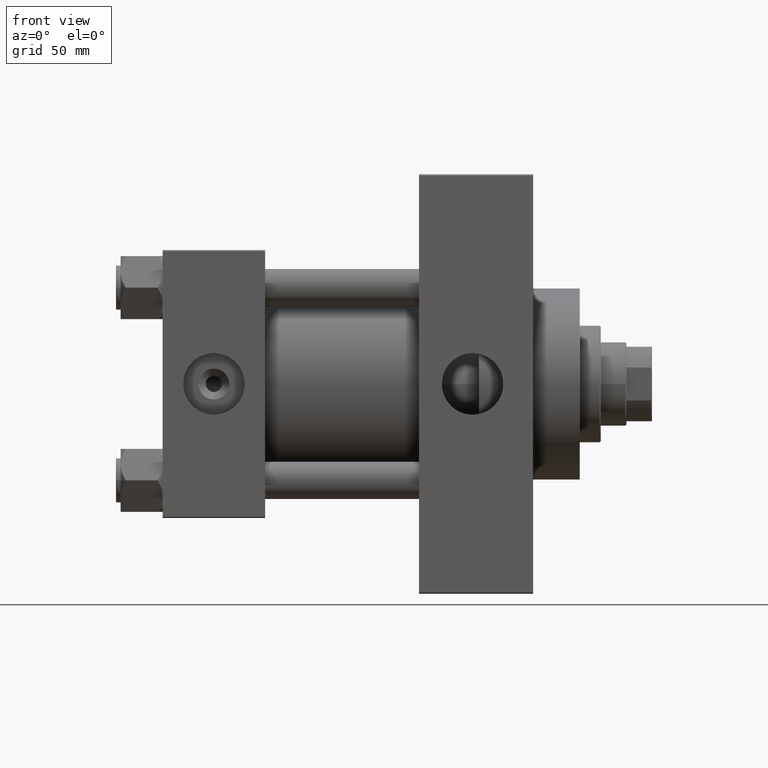
[diagram: clean part render]
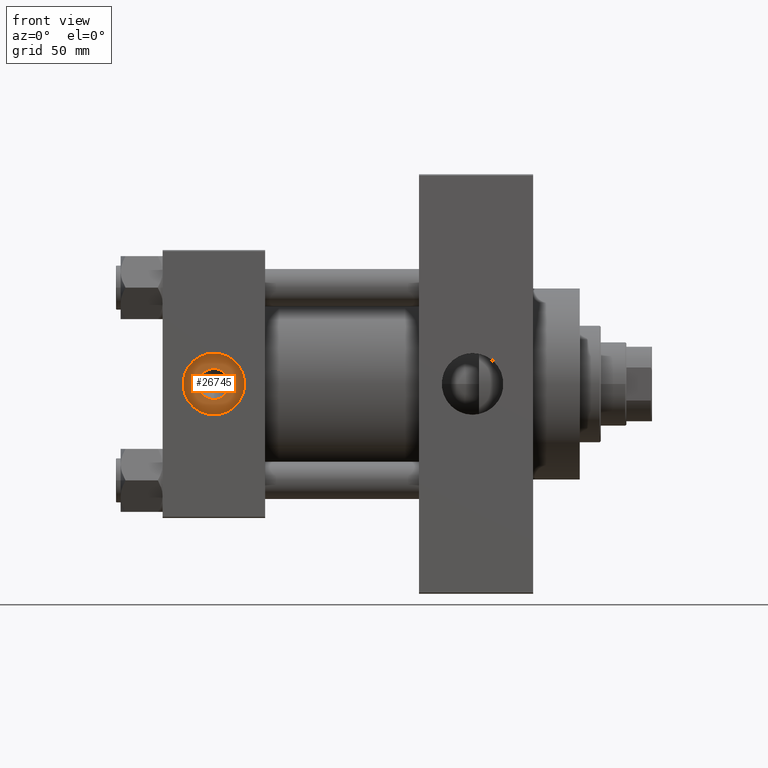
[diagram: same view with one face highlighted and labeled with its STEP entity id]
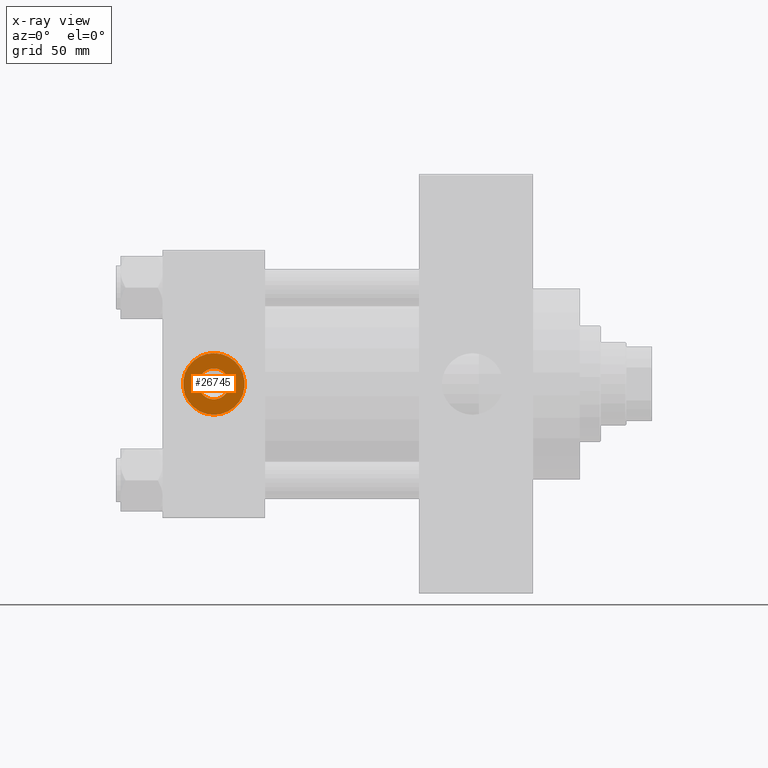
[diagram: x-ray of the same camera — body ghosted, the highlighted face saturated]
A machine part, front view. The second image highlights one B-rep face of the part: STEP entity #26745.
The next image is the same camera in x-ray: the body ghosted, the highlighted face saturated — about 0% of this face is hidden behind the body in this view.
In plain terms, the highlighted planar face has unit normal (0, -1, -0).
Its self-contained STEP definition (entity closure, byte-faithful):
#2114 = CARTESIAN_POINT ( 'NONE',  ( 22.00000000000000000, -46.60000000000000853, 9.454242944073594720E-16 ) ) ;
#2777 = EDGE_CURVE ( 'NONE', #10357, #21217, #20849, .T. ) ;
#2946 = EDGE_LOOP ( 'NONE', ( #28937, #12090 ) ) ;
#3308 = AXIS2_PLACEMENT_3D ( 'NONE', #24222, #46377, #9967 ) ;
#6059 = ORIENTED_EDGE ( 'NONE', *, *, #21713, .T. ) ;
#9346 = FACE_OUTER_BOUND ( 'NONE', #45520, .T. ) ;
#9409 = CARTESIAN_POINT ( 'NONE',  ( 22.00000000000000000, -46.60000000000000853, -13.22000000000000242 ) ) ;
#9552 = DIRECTION ( 'NONE',  ( 0.000000000000000000, 0.000000000000000000, -1.000000000000000000 ) ) ;
#9967 = DIRECTION ( 'NONE',  ( 0.000000000000000000, 0.000000000000000000, -1.000000000000000000 ) ) ;
#10357 = VERTEX_POINT ( 'NONE', #32011 ) ;
#10877 = VERTEX_POINT ( 'NONE', #15118 ) ;
#12090 = ORIENTED_EDGE ( 'NONE', *, *, #45613, .T. ) ;
#13219 = DIRECTION ( 'NONE',  ( 0.000000000000000000, 8.673617379884036705E-17, -1.000000000000000000 ) ) ;
#15118 = CARTESIAN_POINT ( 'NONE',  ( 22.00000000000000000, -46.60000000000000853, 13.22000000000000597 ) ) ;
#16835 = DIRECTION ( 'NONE',  ( 0.000000000000000000, -1.000000000000000000, -8.673617379884036705E-17 ) ) ;
#18343 = DIRECTION ( 'NONE',  ( 0.000000000000000000, 0.000000000000000000, -1.000000000000000000 ) ) ;
#20849 = CIRCLE ( 'NONE', #22359, 6.640000000000006786 ) ;
#21217 = VERTEX_POINT ( 'NONE', #33679 ) ;
#21713 = EDGE_CURVE ( 'NONE', #10877, #23422, #26288, .T. ) ;
#21870 = AXIS2_PLACEMENT_3D ( 'NONE', #2114, #16835, #13219 ) ;
#22359 = AXIS2_PLACEMENT_3D ( 'NONE', #39678, #28131, #24516 ) ;
#23422 = VERTEX_POINT ( 'NONE', #9409 ) ;
#23621 = ORIENTED_EDGE ( 'NONE', *, *, #44461, .T. ) ;
#24076 = PLANE ( 'NONE',  #21870 ) ;
#24222 = CARTESIAN_POINT ( 'NONE',  ( 22.00000000000000000, -46.60000000000000853, 9.454242944073596692E-16 ) ) ;
#24516 = DIRECTION ( 'NONE',  ( 0.000000000000000000, 0.000000000000000000, -1.000000000000000000 ) ) ;
#25730 = CIRCLE ( 'NONE', #45741, 13.22000000000000419 ) ;
#26288 = CIRCLE ( 'NONE', #28594, 13.22000000000000419 ) ;
#26745 = ADVANCED_FACE ( 'NONE', ( #27685, #9346 ), #24076, .T. ) ;
#27685 = FACE_BOUND ( 'NONE', #2946, .T. ) ;
#28131 = DIRECTION ( 'NONE',  ( -0.000000000000000000, 1.000000000000000000, 8.673617379884036705E-17 ) ) ;
#28594 = AXIS2_PLACEMENT_3D ( 'NONE', #43889, #44129, #18343 ) ;
#28937 = ORIENTED_EDGE ( 'NONE', *, *, #2777, .T. ) ;
#32011 = CARTESIAN_POINT ( 'NONE',  ( 22.00000000000000000, -46.60000000000000853, -6.640000000000005009 ) ) ;
#33679 = CARTESIAN_POINT ( 'NONE',  ( 22.00000000000000000, -46.60000000000000853, 6.640000000000007674 ) ) ;
#39678 = CARTESIAN_POINT ( 'NONE',  ( 22.00000000000000000, -46.60000000000000853, 9.454242944073596692E-16 ) ) ;
#42816 = DIRECTION ( 'NONE',  ( 0.000000000000000000, -1.000000000000000000, -8.673617379884036705E-17 ) ) ;
#43050 = CARTESIAN_POINT ( 'NONE',  ( 22.00000000000000000, -46.60000000000000853, 9.454242944073594720E-16 ) ) ;
#43338 = CIRCLE ( 'NONE', #3308, 6.640000000000006786 ) ;
#43889 = CARTESIAN_POINT ( 'NONE',  ( 22.00000000000000000, -46.60000000000000853, 9.454242944073594720E-16 ) ) ;
#44129 = DIRECTION ( 'NONE',  ( 0.000000000000000000, -1.000000000000000000, -8.673617379884036705E-17 ) ) ;
#44461 = EDGE_CURVE ( 'NONE', #23422, #10877, #25730, .T. ) ;
#45520 = EDGE_LOOP ( 'NONE', ( #23621, #6059 ) ) ;
#45613 = EDGE_CURVE ( 'NONE', #21217, #10357, #43338, .T. ) ;
#45741 = AXIS2_PLACEMENT_3D ( 'NONE', #43050, #42816, #9552 ) ;
#46377 = DIRECTION ( 'NONE',  ( -0.000000000000000000, 1.000000000000000000, 8.673617379884036705E-17 ) ) ;